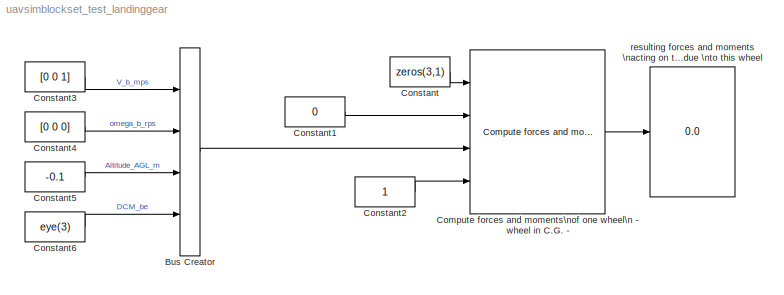
MODEL uavsimblockset_test_landinggear
KIND model
BLOCK [BusCreator] Bus Creator
  DisplayOption = bar
  NonVirtualBus = on
  OutDataTypeStr = Bus: LandinggearInput
  Ports = [4, 1]
  SID = 25
BLOCK [Reference] Compute forces and moments\nof one wheel\n - wheel in C.G. -  REF=uavsimBlockset_landinggear_onwheel/Compute forces and moments\nof one wheel
  Ports = [4, 1]
  SID = 1
  SourceBlock = uavsimBlockset_landinggear_onwheel/Compute forces and moments\nof one wheel
  SourceType = SubSystem
BLOCK [Constant] Constant
  SID = 3
  Value = zeros(3,1)
BLOCK [Constant] Constant1
  SID = 4
  Value = 0
BLOCK [Constant] Constant2
  SID = 5
BLOCK [Constant] Constant3
  SID = 26
  Value = [0 0 1]
BLOCK [Constant] Constant4
  SID = 27
  Value = [0 0 0]
BLOCK [Constant] Constant5
  SID = 28
  Value = -0.1
BLOCK [Constant] Constant6
  SID = 29
  Value = eye(3)
BLOCK [Display] resulting forces and moments \nacting on the A\\C due \nto this wheel
  Decimation = 1
  Lockdown = off
  Ports = [1]
  SID = 2
LINE Bus Creator:1 -> Compute forces and moments\nof one wheel\n - wheel in C.G. -:3
LINE Compute forces and moments\nof one wheel\n - wheel in C.G. -:1 -> resulting forces and moments \nacting on the A\\C due \nto this wheel:1
LINE Constant1:1 -> Compute forces and moments\nof one wheel\n - wheel in C.G. -:2
LINE Constant2:1 -> Compute forces and moments\nof one wheel\n - wheel in C.G. -:4
LINE Constant3:1 -> Bus Creator:1
LINE Constant4:1 -> Bus Creator:2
LINE Constant5:1 -> Bus Creator:3
LINE Constant6:1 -> Bus Creator:4
LINE Constant:1 -> Compute forces and moments\nof one wheel\n - wheel in C.G. -:1
